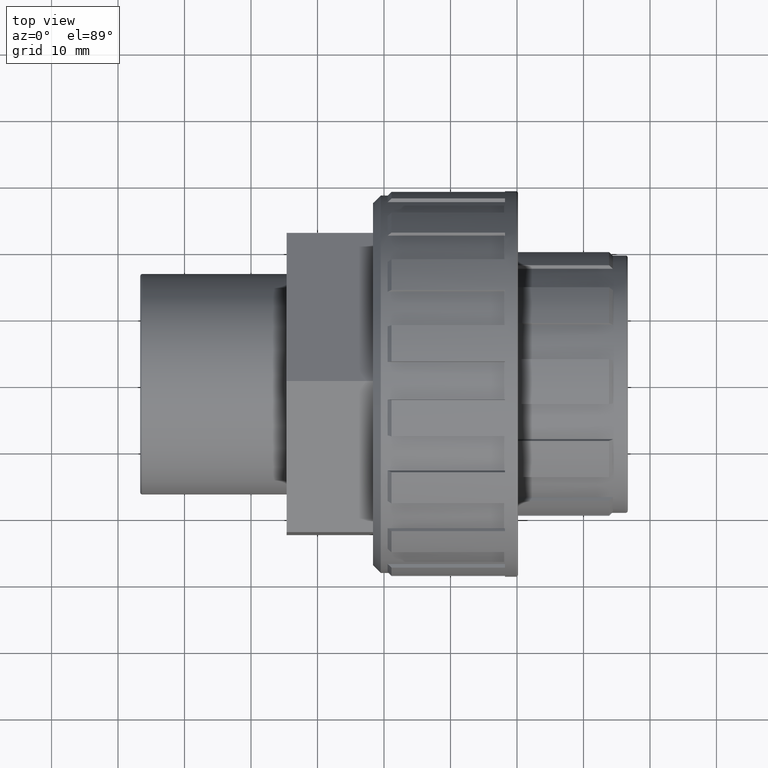
[diagram: clean part render]
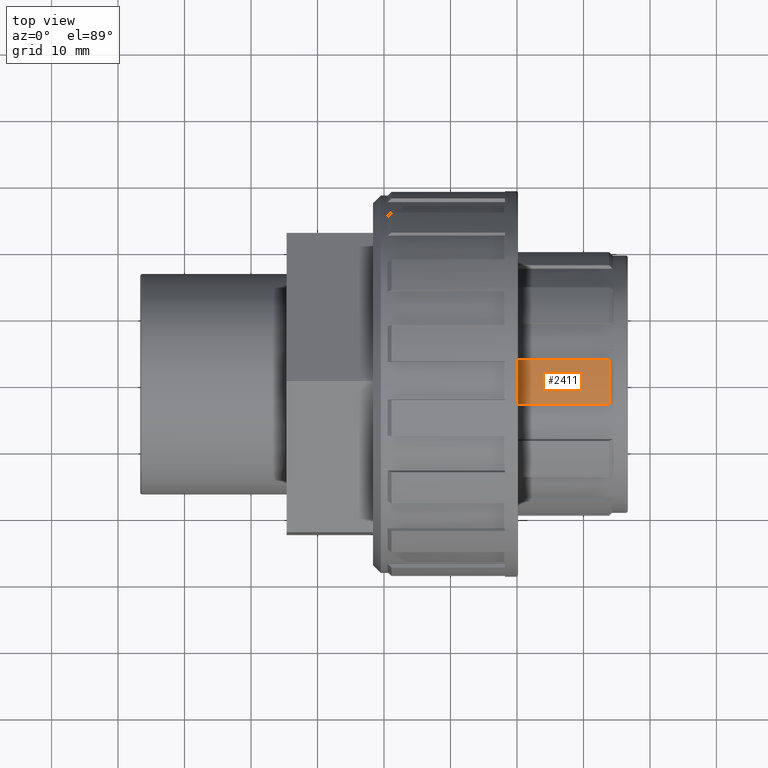
[diagram: same view with one face highlighted and labeled with its STEP entity id]
A machine part, top view. The second image highlights one B-rep face of the part: STEP entity #2411.
In plain terms, the highlighted cylindrical surface (partial cylindrical patch) has radius 19.9921 mm, axis along (-1, -0, 0).
Its self-contained STEP definition (entity closure, byte-faithful):
#78=CYLINDRICAL_SURFACE('',#2625,19.99206);
#167=CIRCLE('',#2626,19.99206);
#168=CIRCLE('',#2627,19.99206);
#305=FACE_OUTER_BOUND('',#438,.T.);
#438=EDGE_LOOP('',(#1977,#1978,#1979,#1980));
#655=LINE('',#3896,#881);
#657=LINE('',#3902,#883);
#881=VECTOR('',#3140,13.69418);
#883=VECTOR('',#3144,13.69418);
#1101=VERTEX_POINT('',#3890);
#1103=VERTEX_POINT('',#3894);
#1104=VERTEX_POINT('',#3898);
#1106=VERTEX_POINT('',#3901);
#1410=EDGE_CURVE('',#1101,#1103,#655,.T.);
#1412=EDGE_CURVE('',#1106,#1104,#657,.T.);
#1485=EDGE_CURVE('',#1106,#1103,#167,.T.);
#1486=EDGE_CURVE('',#1101,#1104,#168,.T.);
#1977=ORIENTED_EDGE('',*,*,#1410,.T.);
#1978=ORIENTED_EDGE('',*,*,#1485,.F.);
#1979=ORIENTED_EDGE('',*,*,#1412,.T.);
#1980=ORIENTED_EDGE('',*,*,#1486,.F.);
#2411=ADVANCED_FACE('',(#305),#78,.T.);
#2625=AXIS2_PLACEMENT_3D('',#4053,#3275,#3276);
#2626=AXIS2_PLACEMENT_3D('',#4054,#3277,#3278);
#2627=AXIS2_PLACEMENT_3D('',#4055,#3279,#3280);
#3140=DIRECTION('',(-1.,-1.83697019872103E-16,0.));
#3144=DIRECTION('',(1.,1.83697019872103E-16,0.));
#3275=DIRECTION('center_axis',(-1.,-1.83697019872103E-16,0.));
#3276=DIRECTION('ref_axis',(2.00347022399198E-16,-1.,0.));
#3277=DIRECTION('center_axis',(-1.,-1.83697019872103E-16,0.));
#3278=DIRECTION('ref_axis',(0.,0.,1.));
#3279=DIRECTION('center_axis',(1.,1.83697019872103E-16,0.));
#3280=DIRECTION('ref_axis',(2.00347022399198E-16,-1.,0.));
#3890=CARTESIAN_POINT('',(33.84418,3.35448021343906,19.7086256634309));
#3894=CARTESIAN_POINT('',(20.15,3.35448021343906,19.7086256634309));
#3896=CARTESIAN_POINT('',(27.3,3.35448021343906,19.7086256634309));
#3898=CARTESIAN_POINT('',(33.84418,-3.35448021343904,19.7086256634309));
#3901=CARTESIAN_POINT('',(20.15,-3.35448021343904,19.7086256634309));
#3902=CARTESIAN_POINT('',(27.3,-3.35448021343904,19.7086256634309));
#4053=CARTESIAN_POINT('Origin',(27.3,1.1747424420821E-14,0.));
#4054=CARTESIAN_POINT('Origin',(20.15,1.04339907287354E-14,0.));
#4055=CARTESIAN_POINT('Origin',(33.84418,1.29495707843276E-14,0.));